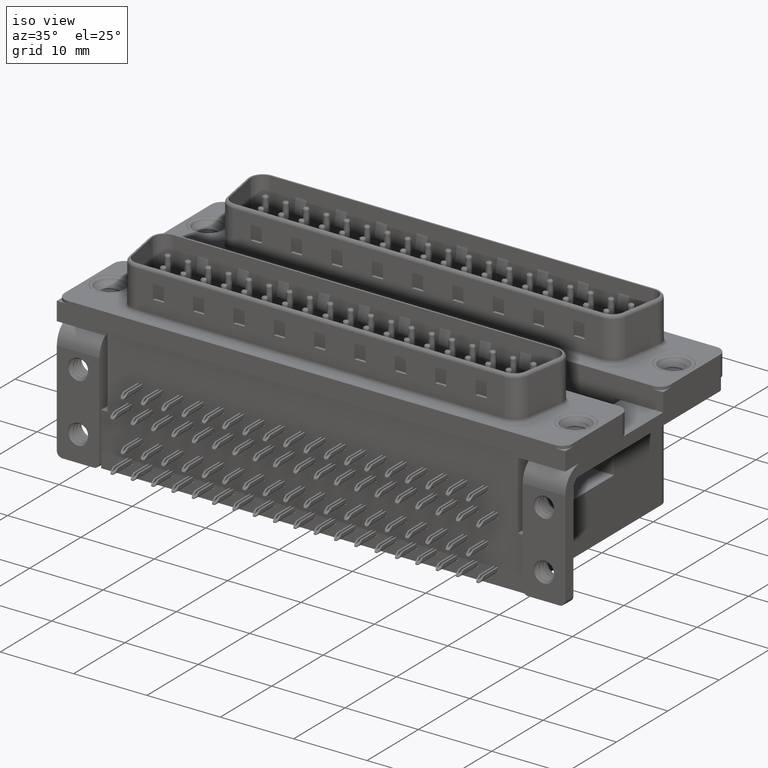
[diagram: clean part render]
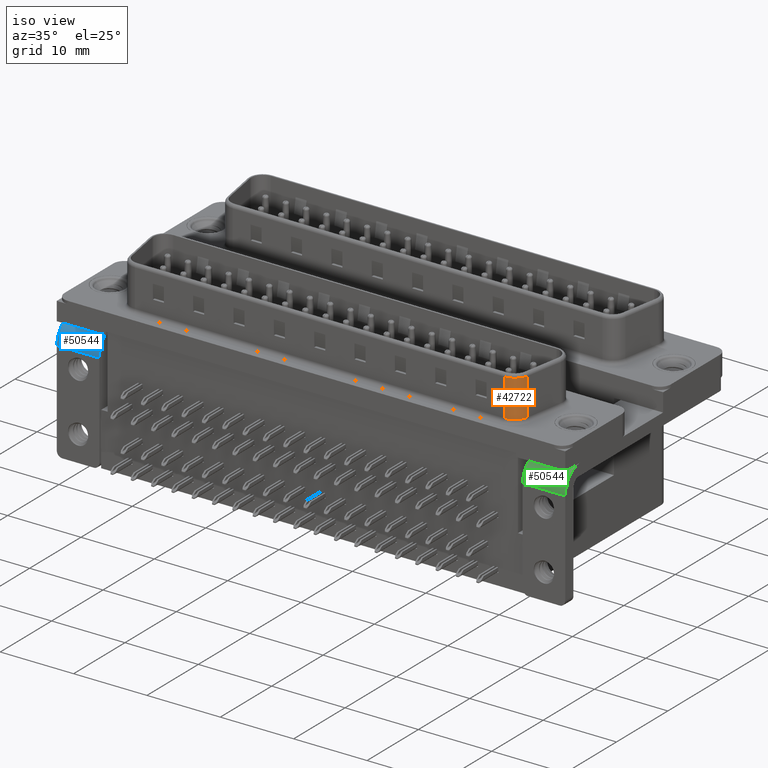
[diagram: same view with three faces highlighted in distinct colors, each labeled with its STEP entity id]
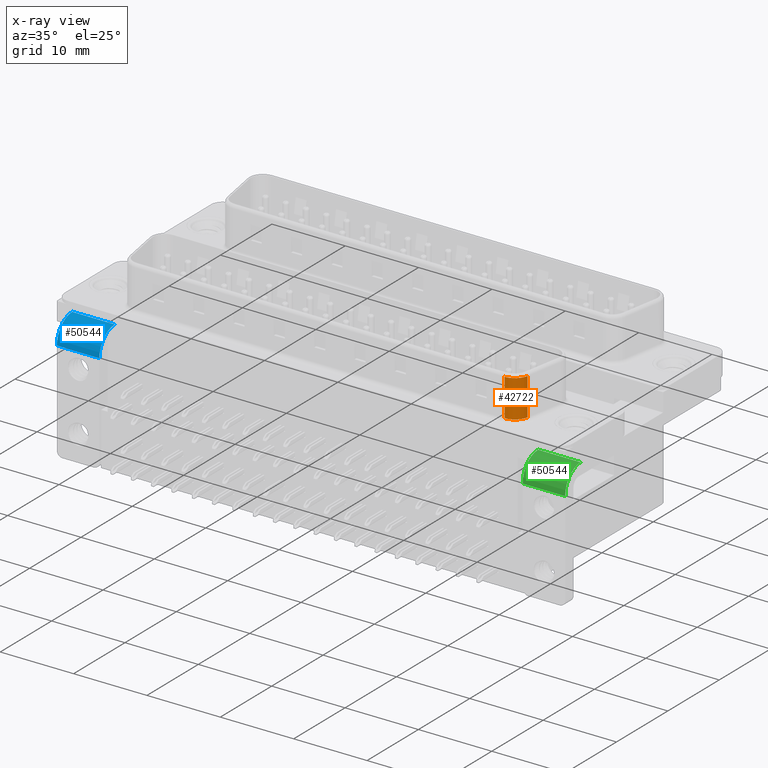
[diagram: x-ray of the same camera — body ghosted, the three highlighted faces saturated]
A machine part, iso view with three faces highlighted in distinct colors.
The next image is the same camera in x-ray (body ghosted, the three faces saturated) — at least one of them is partly hidden behind the body in this view.
Their STEP definitions:

[orange] entity #42722 — the highlighted cylindrical surface (edge-blend (fillet) strip) has radius 2 mm, axis along (-0, -0, -1).
#116 = VERTEX_POINT ( 'NONE', #20067 ) ;
#788 = VERTEX_POINT ( 'NONE', #9170 ) ;
#1131 = ORIENTED_EDGE ( 'NONE', *, *, #42368, .F. ) ;
#1819 = DIRECTION ( 'NONE',  ( -0.0000000000000000000, -0.0000000000000000000, -1.000000000000000000 ) ) ;
#2812 = CARTESIAN_POINT ( 'NONE',  ( 58.91976828556877166, -2.927296355333851796, 6.500000000000000000 ) ) ;
#4694 = DIRECTION ( 'NONE',  ( -0.0000000000000000000, -0.0000000000000000000, -1.000000000000000000 ) ) ;
#4952 = DIRECTION ( 'NONE',  ( 0.0000000000000000000, 0.0000000000000000000, 1.000000000000000000 ) ) ;
#8008 = VECTOR ( 'NONE', #39755, 1000.000000000000000 ) ;
#8980 = CYLINDRICAL_SURFACE ( 'NONE', #14054, 2.000000000000001776 ) ;
#9170 = CARTESIAN_POINT ( 'NONE',  ( 56.95015277954435362, -4.580000000000004512, 0.8999999999999998002 ) ) ;
#12048 = EDGE_LOOP ( 'NONE', ( #1131, #42373, #36616, #49826 ) ) ;
#14054 = AXIS2_PLACEMENT_3D ( 'NONE', #28983, #4694, #25995 ) ;
#14469 = CARTESIAN_POINT ( 'NONE',  ( 56.95015277954435362, -4.580000000000004512, 6.500000000000000000 ) ) ;
#14953 = CARTESIAN_POINT ( 'NONE',  ( 58.91976828556877166, -2.927296355333851796, 0.8999999999999998002 ) ) ;
#16416 = DIRECTION ( 'NONE',  ( -1.000000000000000000, 0.0000000000000000000, 0.0000000000000000000 ) ) ;
#17271 = EDGE_CURVE ( 'NONE', #37411, #788, #38489, .T. ) ;
#20067 = CARTESIAN_POINT ( 'NONE',  ( 58.91976828556877166, -2.927296355333851796, 6.000000000000000000 ) ) ;
#25995 = DIRECTION ( 'NONE',  ( -1.000000000000000000, 0.0000000000000000000, 0.0000000000000000000 ) ) ;
#28983 = CARTESIAN_POINT ( 'NONE',  ( 56.95015277954435362, -2.580000000000005844, 6.500000000000000000 ) ) ;
#29520 = CARTESIAN_POINT ( 'NONE',  ( 56.95015277954435362, -2.580000000000005844, 0.8999999999999998002 ) ) ;
#30063 = FACE_OUTER_BOUND ( 'NONE', #12048, .T. ) ;
#31604 = AXIS2_PLACEMENT_3D ( 'NONE', #29520, #4952, #33278 ) ;
#33156 = CARTESIAN_POINT ( 'NONE',  ( 56.95015277954435362, -2.580000000000005844, 6.000000000000000000 ) ) ;
#33278 = DIRECTION ( 'NONE',  ( 1.000000000000000000, 0.0000000000000000000, 0.0000000000000000000 ) ) ;
#35902 = CIRCLE ( 'NONE', #31604, 2.000000000000001776 ) ;
#36616 = ORIENTED_EDGE ( 'NONE', *, *, #17271, .T. ) ;
#37411 = VERTEX_POINT ( 'NONE', #41240 ) ;
#37652 = CIRCLE ( 'NONE', #50546, 2.000000000000001776 ) ;
#37981 = VECTOR ( 'NONE', #1819, 1000.000000000000000 ) ;
#38489 = LINE ( 'NONE', #14469, #37981 ) ;
#38693 = LINE ( 'NONE', #2812, #8008 ) ;
#39755 = DIRECTION ( 'NONE',  ( -0.0000000000000000000, -0.0000000000000000000, -1.000000000000000000 ) ) ;
#41240 = CARTESIAN_POINT ( 'NONE',  ( 56.95015277954435362, -4.580000000000004512, 6.000000000000000000 ) ) ;
#42368 = EDGE_CURVE ( 'NONE', #116, #42399, #38693, .T. ) ;
#42373 = ORIENTED_EDGE ( 'NONE', *, *, #48675, .T. ) ;
#42399 = VERTEX_POINT ( 'NONE', #14953 ) ;
#42722 = ADVANCED_FACE ( 'NONE', ( #30063 ), #8980, .T. ) ;
#44723 = DIRECTION ( 'NONE',  ( -0.0000000000000000000, -0.0000000000000000000, -1.000000000000000000 ) ) ;
#46441 = EDGE_CURVE ( 'NONE', #788, #42399, #35902, .T. ) ;
#48675 = EDGE_CURVE ( 'NONE', #116, #37411, #37652, .T. ) ;
#49826 = ORIENTED_EDGE ( 'NONE', *, *, #46441, .T. ) ;
#50546 = AXIS2_PLACEMENT_3D ( 'NONE', #33156, #44723, #16416 ) ;

[blue] entity #50544 — the highlighted cylindrical surface (edge-blend (fillet) strip) has radius 3 mm, axis along (-1, 0, 0).
#1601 = VECTOR ( 'NONE', #21882, 1000.000000000000000 ) ;
#2078 = CARTESIAN_POINT ( 'NONE',  ( 2.899999999999999911, -3.275000000000000355, -2.500000000000000000 ) ) ;
#2247 = DIRECTION ( 'NONE',  ( 1.000000000000000000, 0.0000000000000000000, -0.0000000000000000000 ) ) ;
#4908 = CARTESIAN_POINT ( 'NONE',  ( 2.899999999999999911, -3.275000000000000799, -5.500000000000000000 ) ) ;
#6291 = DIRECTION ( 'NONE',  ( 0.0000000000000000000, 0.0000000000000000000, -1.000000000000000000 ) ) ;
#6296 = VERTEX_POINT ( 'NONE', #39839 ) ;
#7263 = ORIENTED_EDGE ( 'NONE', *, *, #27115, .F. ) ;
#7395 = VERTEX_POINT ( 'NONE', #2078 ) ;
#7672 = DIRECTION ( 'NONE',  ( 0.0000000000000000000, 0.0000000000000000000, 1.000000000000000000 ) ) ;
#8200 = DIRECTION ( 'NONE',  ( -1.000000000000000000, 0.0000000000000000000, 0.0000000000000000000 ) ) ;
#10904 = FACE_OUTER_BOUND ( 'NONE', #11959, .T. ) ;
#11959 = EDGE_LOOP ( 'NONE', ( #7263, #47227, #33688, #18666 ) ) ;
#13861 = EDGE_CURVE ( 'NONE', #24311, #50308, #28744, .T. ) ;
#14355 = AXIS2_PLACEMENT_3D ( 'NONE', #34867, #30054, #46444 ) ;
#16353 = CARTESIAN_POINT ( 'NONE',  ( -2.899999999999999911, -6.275000000000001243, -5.500000000000000000 ) ) ;
#18359 = CARTESIAN_POINT ( 'NONE',  ( 2.899999999999999911, -3.275000000000000355, -2.500000000000000000 ) ) ;
#18666 = ORIENTED_EDGE ( 'NONE', *, *, #13861, .F. ) ;
#20088 = DIRECTION ( 'NONE',  ( -1.000000000000000000, 0.0000000000000000000, 0.0000000000000000000 ) ) ;
#21474 = CARTESIAN_POINT ( 'NONE',  ( 2.899999999999999911, -6.275000000000001243, -5.500000000000000000 ) ) ;
#21882 = DIRECTION ( 'NONE',  ( 1.000000000000000000, -0.0000000000000000000, -0.0000000000000000000 ) ) ;
#23613 = CYLINDRICAL_SURFACE ( 'NONE', #52388, 3.000000000000000000 ) ;
#24311 = VERTEX_POINT ( 'NONE', #21474 ) ;
#25935 = LINE ( 'NONE', #18359, #1601 ) ;
#27115 = EDGE_CURVE ( 'NONE', #7395, #24311, #37703, .T. ) ;
#28744 = LINE ( 'NONE', #45409, #46952 ) ;
#30054 = DIRECTION ( 'NONE',  ( -1.000000000000000000, -0.0000000000000000000, 0.0000000000000000000 ) ) ;
#31135 = CARTESIAN_POINT ( 'NONE',  ( 2.899999999999999911, -3.275000000000000799, -5.500000000000000000 ) ) ;
#33688 = ORIENTED_EDGE ( 'NONE', *, *, #46667, .F. ) ;
#34867 = CARTESIAN_POINT ( 'NONE',  ( -2.899999999999999911, -3.275000000000000799, -5.500000000000000000 ) ) ;
#37624 = CIRCLE ( 'NONE', #14355, 3.000000000000000888 ) ;
#37703 = CIRCLE ( 'NONE', #43694, 3.000000000000000888 ) ;
#39839 = CARTESIAN_POINT ( 'NONE',  ( -2.899999999999999911, -3.275000000000000355, -2.500000000000000000 ) ) ;
#43694 = AXIS2_PLACEMENT_3D ( 'NONE', #31135, #2247, #6291 ) ;
#45409 = CARTESIAN_POINT ( 'NONE',  ( 2.899999999999999911, -6.275000000000001243, -5.500000000000000000 ) ) ;
#46444 = DIRECTION ( 'NONE',  ( 0.0000000000000000000, 8.673617379884032514E-16, -1.000000000000000000 ) ) ;
#46667 = EDGE_CURVE ( 'NONE', #50308, #6296, #37624, .T. ) ;
#46952 = VECTOR ( 'NONE', #8200, 1000.000000000000000 ) ;
#47227 = ORIENTED_EDGE ( 'NONE', *, *, #49714, .F. ) ;
#49714 = EDGE_CURVE ( 'NONE', #6296, #7395, #25935, .T. ) ;
#50308 = VERTEX_POINT ( 'NONE', #16353 ) ;
#50544 = ADVANCED_FACE ( 'NONE', ( #10904 ), #23613, .T. ) ;
#52388 = AXIS2_PLACEMENT_3D ( 'NONE', #4908, #20088, #7672 ) ;

[green] entity #50544 — the highlighted cylindrical surface (edge-blend (fillet) strip) has radius 3 mm, axis along (-1, 0, 0).
#1601 = VECTOR ( 'NONE', #21882, 1000.000000000000000 ) ;
#2078 = CARTESIAN_POINT ( 'NONE',  ( 2.899999999999999911, -3.275000000000000355, -2.500000000000000000 ) ) ;
#2247 = DIRECTION ( 'NONE',  ( 1.000000000000000000, 0.0000000000000000000, -0.0000000000000000000 ) ) ;
#4908 = CARTESIAN_POINT ( 'NONE',  ( 2.899999999999999911, -3.275000000000000799, -5.500000000000000000 ) ) ;
#6291 = DIRECTION ( 'NONE',  ( 0.0000000000000000000, 0.0000000000000000000, -1.000000000000000000 ) ) ;
#6296 = VERTEX_POINT ( 'NONE', #39839 ) ;
#7263 = ORIENTED_EDGE ( 'NONE', *, *, #27115, .F. ) ;
#7395 = VERTEX_POINT ( 'NONE', #2078 ) ;
#7672 = DIRECTION ( 'NONE',  ( 0.0000000000000000000, 0.0000000000000000000, 1.000000000000000000 ) ) ;
#8200 = DIRECTION ( 'NONE',  ( -1.000000000000000000, 0.0000000000000000000, 0.0000000000000000000 ) ) ;
#10904 = FACE_OUTER_BOUND ( 'NONE', #11959, .T. ) ;
#11959 = EDGE_LOOP ( 'NONE', ( #7263, #47227, #33688, #18666 ) ) ;
#13861 = EDGE_CURVE ( 'NONE', #24311, #50308, #28744, .T. ) ;
#14355 = AXIS2_PLACEMENT_3D ( 'NONE', #34867, #30054, #46444 ) ;
#16353 = CARTESIAN_POINT ( 'NONE',  ( -2.899999999999999911, -6.275000000000001243, -5.500000000000000000 ) ) ;
#18359 = CARTESIAN_POINT ( 'NONE',  ( 2.899999999999999911, -3.275000000000000355, -2.500000000000000000 ) ) ;
#18666 = ORIENTED_EDGE ( 'NONE', *, *, #13861, .F. ) ;
#20088 = DIRECTION ( 'NONE',  ( -1.000000000000000000, 0.0000000000000000000, 0.0000000000000000000 ) ) ;
#21474 = CARTESIAN_POINT ( 'NONE',  ( 2.899999999999999911, -6.275000000000001243, -5.500000000000000000 ) ) ;
#21882 = DIRECTION ( 'NONE',  ( 1.000000000000000000, -0.0000000000000000000, -0.0000000000000000000 ) ) ;
#23613 = CYLINDRICAL_SURFACE ( 'NONE', #52388, 3.000000000000000000 ) ;
#24311 = VERTEX_POINT ( 'NONE', #21474 ) ;
#25935 = LINE ( 'NONE', #18359, #1601 ) ;
#27115 = EDGE_CURVE ( 'NONE', #7395, #24311, #37703, .T. ) ;
#28744 = LINE ( 'NONE', #45409, #46952 ) ;
#30054 = DIRECTION ( 'NONE',  ( -1.000000000000000000, -0.0000000000000000000, 0.0000000000000000000 ) ) ;
#31135 = CARTESIAN_POINT ( 'NONE',  ( 2.899999999999999911, -3.275000000000000799, -5.500000000000000000 ) ) ;
#33688 = ORIENTED_EDGE ( 'NONE', *, *, #46667, .F. ) ;
#34867 = CARTESIAN_POINT ( 'NONE',  ( -2.899999999999999911, -3.275000000000000799, -5.500000000000000000 ) ) ;
#37624 = CIRCLE ( 'NONE', #14355, 3.000000000000000888 ) ;
#37703 = CIRCLE ( 'NONE', #43694, 3.000000000000000888 ) ;
#39839 = CARTESIAN_POINT ( 'NONE',  ( -2.899999999999999911, -3.275000000000000355, -2.500000000000000000 ) ) ;
#43694 = AXIS2_PLACEMENT_3D ( 'NONE', #31135, #2247, #6291 ) ;
#45409 = CARTESIAN_POINT ( 'NONE',  ( 2.899999999999999911, -6.275000000000001243, -5.500000000000000000 ) ) ;
#46444 = DIRECTION ( 'NONE',  ( 0.0000000000000000000, 8.673617379884032514E-16, -1.000000000000000000 ) ) ;
#46667 = EDGE_CURVE ( 'NONE', #50308, #6296, #37624, .T. ) ;
#46952 = VECTOR ( 'NONE', #8200, 1000.000000000000000 ) ;
#47227 = ORIENTED_EDGE ( 'NONE', *, *, #49714, .F. ) ;
#49714 = EDGE_CURVE ( 'NONE', #6296, #7395, #25935, .T. ) ;
#50308 = VERTEX_POINT ( 'NONE', #16353 ) ;
#50544 = ADVANCED_FACE ( 'NONE', ( #10904 ), #23613, .T. ) ;
#52388 = AXIS2_PLACEMENT_3D ( 'NONE', #4908, #20088, #7672 ) ;